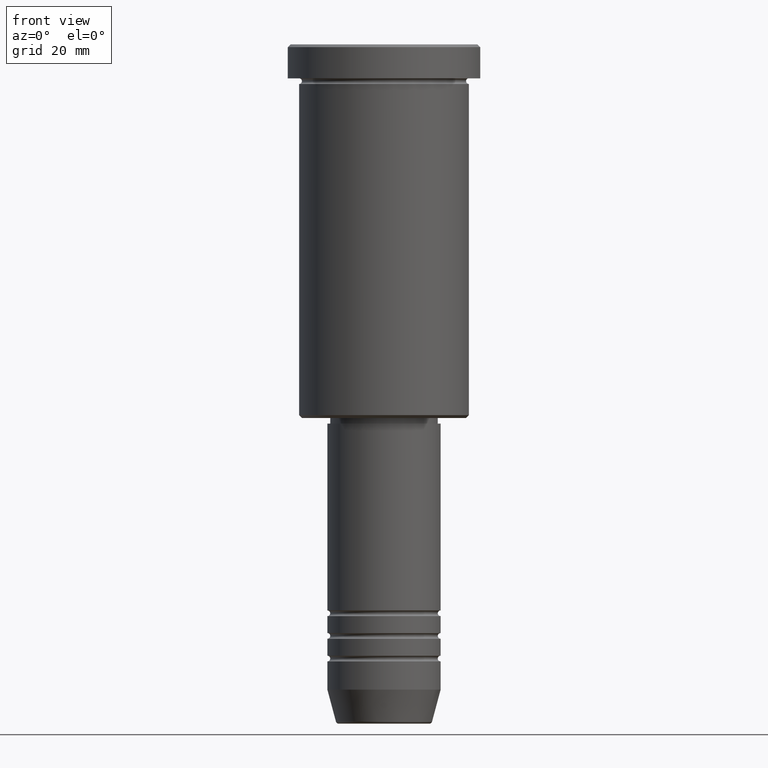
[diagram: clean part render]
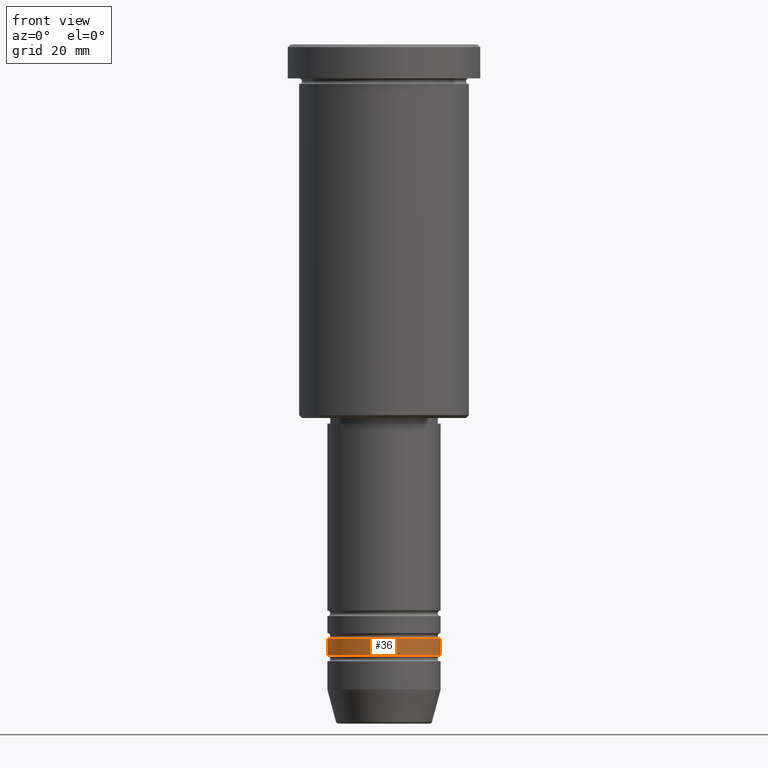
[diagram: same view with one face highlighted and labeled with its STEP entity id]
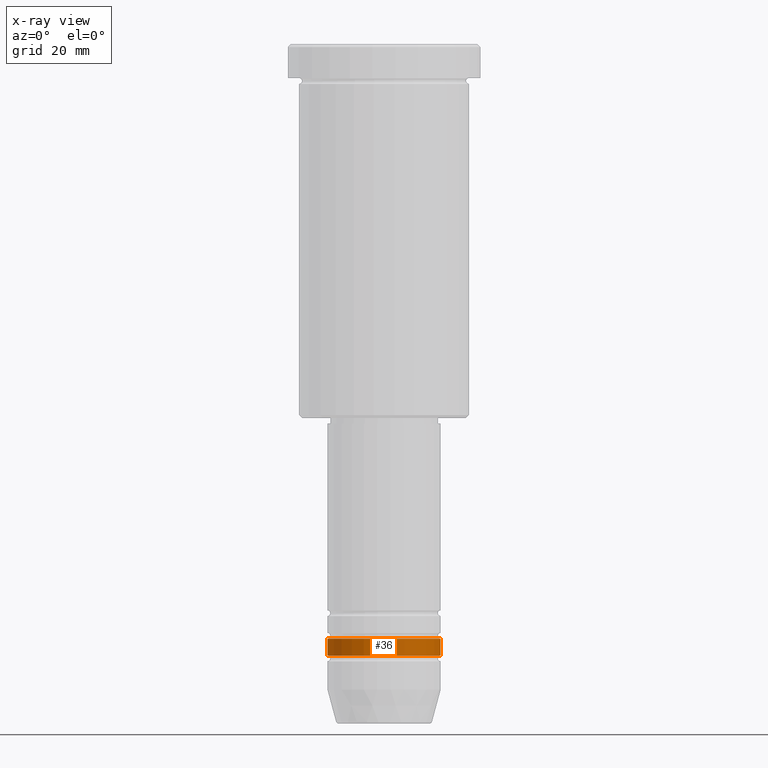
[diagram: x-ray of the same camera — body ghosted, the highlighted face saturated]
A machine part, front view. The second image highlights one B-rep face of the part: STEP entity #36.
The next image is the same camera in x-ray: the body ghosted, the highlighted face saturated — about 0% of this face is hidden behind the body in this view.
In plain terms, the highlighted cylindrical surface (partial cylindrical patch) has radius 10 mm, axis along (-0, -0, 1).
Its self-contained STEP definition (entity closure, byte-faithful):
#10 = CARTESIAN_POINT ( 'NONE',  ( 10.00000000000000000, 0.000000000000000000, -104.9999999999999858 ) ) ;
#36 = ADVANCED_FACE ( 'NONE', ( #297 ), #910, .T. ) ;
#51 = CARTESIAN_POINT ( 'NONE',  ( -10.00000000000000000, 1.224646799147353256E-15, -104.9999999999999858 ) ) ;
#64 = EDGE_CURVE ( 'NONE', #1138, #520, #308, .T. ) ;
#74 = LINE ( 'NONE', #1171, #561 ) ;
#88 = AXIS2_PLACEMENT_3D ( 'NONE', #635, #613, #972 ) ;
#100 = EDGE_CURVE ( 'NONE', #711, #878, #845, .T. ) ;
#214 = EDGE_CURVE ( 'NONE', #520, #878, #74, .T. ) ;
#238 = CARTESIAN_POINT ( 'NONE',  ( -10.00000000000000178, 1.224646799147353454E-15, 0.000000000000000000 ) ) ;
#253 = DIRECTION ( 'NONE',  ( -0.000000000000000000, -0.000000000000000000, 1.000000000000000000 ) ) ;
#269 = DIRECTION ( 'NONE',  ( -0.000000000000000000, -0.000000000000000000, 1.000000000000000000 ) ) ;
#297 = FACE_OUTER_BOUND ( 'NONE', #586, .T. ) ;
#308 = CIRCLE ( 'NONE', #696, 10.00000000000000178 ) ;
#324 = LINE ( 'NONE', #238, #565 ) ;
#325 = ORIENTED_EDGE ( 'NONE', *, *, #725, .F. ) ;
#439 = DIRECTION ( 'NONE',  ( 1.000000000000000000, 0.000000000000000000, 0.000000000000000000 ) ) ;
#516 = ORIENTED_EDGE ( 'NONE', *, *, #100, .F. ) ;
#520 = VERTEX_POINT ( 'NONE', #593 ) ;
#554 = CARTESIAN_POINT ( 'NONE',  ( 0.000000000000000000, 0.000000000000000000, -107.9999999999999716 ) ) ;
#561 = VECTOR ( 'NONE', #269, 1000.000000000000000 ) ;
#565 = VECTOR ( 'NONE', #253, 1000.000000000000000 ) ;
#586 = EDGE_LOOP ( 'NONE', ( #325, #669, #772, #516 ) ) ;
#593 = CARTESIAN_POINT ( 'NONE',  ( 10.00000000000000178, 0.000000000000000000, -107.9999999999999716 ) ) ;
#603 = AXIS2_PLACEMENT_3D ( 'NONE', #734, #1183, #439 ) ;
#613 = DIRECTION ( 'NONE',  ( -0.000000000000000000, -0.000000000000000000, 1.000000000000000000 ) ) ;
#635 = CARTESIAN_POINT ( 'NONE',  ( 0.000000000000000000, 0.000000000000000000, -104.9999999999999858 ) ) ;
#643 = DIRECTION ( 'NONE',  ( 1.000000000000000000, 0.000000000000000000, 0.000000000000000000 ) ) ;
#669 = ORIENTED_EDGE ( 'NONE', *, *, #64, .T. ) ;
#696 = AXIS2_PLACEMENT_3D ( 'NONE', #554, #919, #643 ) ;
#711 = VERTEX_POINT ( 'NONE', #51 ) ;
#725 = EDGE_CURVE ( 'NONE', #1138, #711, #324, .T. ) ;
#734 = CARTESIAN_POINT ( 'NONE',  ( 0.000000000000000000, 0.000000000000000000, 0.000000000000000000 ) ) ;
#772 = ORIENTED_EDGE ( 'NONE', *, *, #214, .T. ) ;
#845 = CIRCLE ( 'NONE', #88, 10.00000000000000000 ) ;
#878 = VERTEX_POINT ( 'NONE', #10 ) ;
#910 = CYLINDRICAL_SURFACE ( 'NONE', #603, 10.00000000000000178 ) ;
#919 = DIRECTION ( 'NONE',  ( -0.000000000000000000, -0.000000000000000000, 1.000000000000000000 ) ) ;
#972 = DIRECTION ( 'NONE',  ( 1.000000000000000000, 0.000000000000000000, 0.000000000000000000 ) ) ;
#1085 = CARTESIAN_POINT ( 'NONE',  ( -10.00000000000000178, 1.224646799147353454E-15, -107.9999999999999716 ) ) ;
#1138 = VERTEX_POINT ( 'NONE', #1085 ) ;
#1171 = CARTESIAN_POINT ( 'NONE',  ( 10.00000000000000178, 0.000000000000000000, 0.000000000000000000 ) ) ;
#1183 = DIRECTION ( 'NONE',  ( -0.000000000000000000, -0.000000000000000000, 1.000000000000000000 ) ) ;